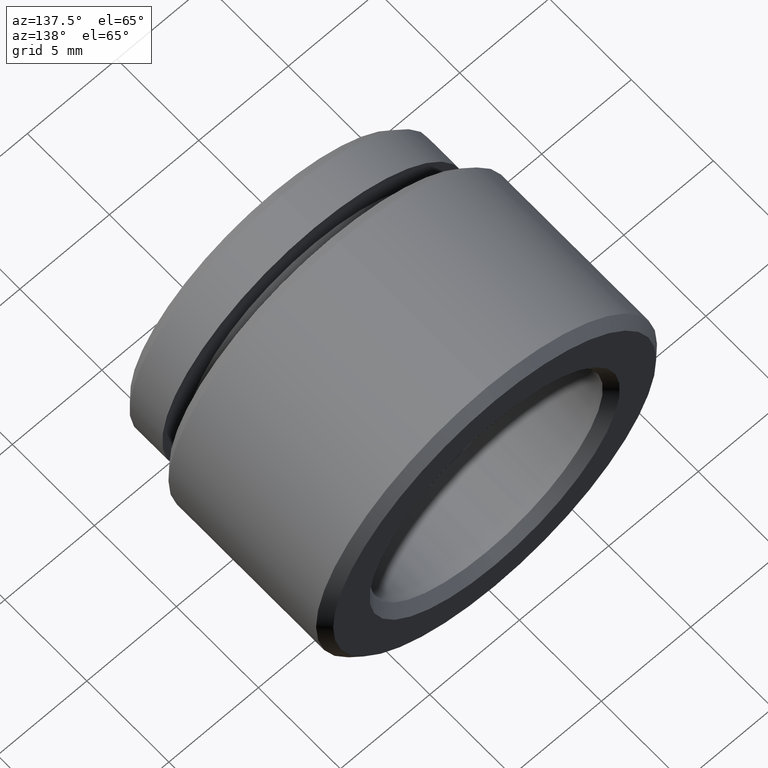
[diagram: clean part render]
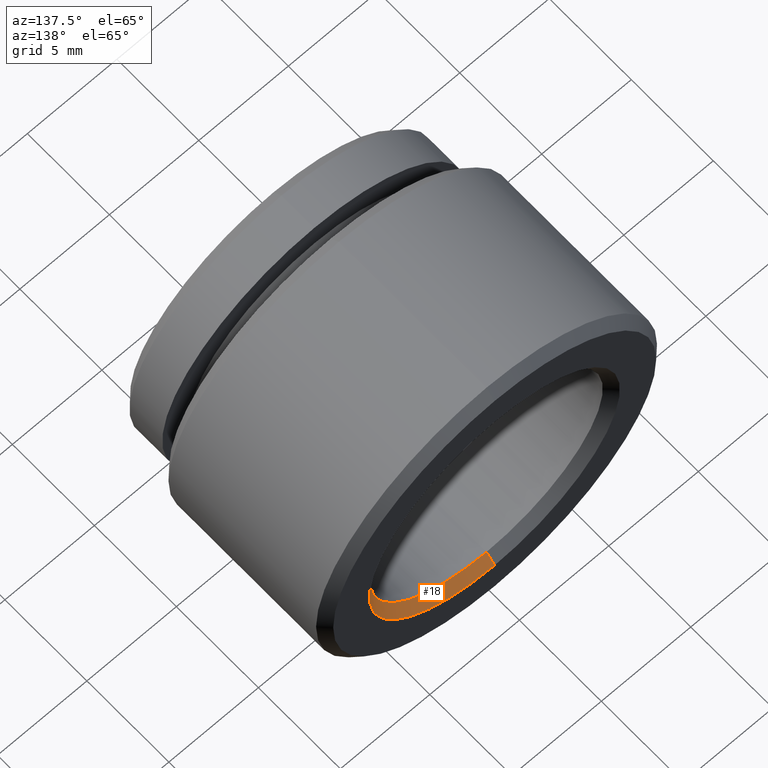
[diagram: same view with one face highlighted and labeled with its STEP entity id]
A machine part, auxiliary view. The second image highlights one B-rep face of the part: STEP entity #18.
In plain terms, the highlighted conical surface has half-angle 45 deg.
Its self-contained STEP definition (entity closure, byte-faithful):
#9 = CARTESIAN_POINT ( 'NONE',  ( 0.0000000000000000000, 13.49999999999999800, 6.999999999999999100 ) ) ;
#18 = ADVANCED_FACE ( 'NONE', ( #744 ), #558, .F. ) ;
#40 = CARTESIAN_POINT ( 'NONE',  ( 0.0000000000000000000, 13.49999999999999800, 6.999999999999999100 ) ) ;
#45 = CIRCLE ( 'NONE', #88, 6.500000000000000900 ) ;
#59 = VECTOR ( 'NONE', #112, 1000.000000000000000 ) ;
#88 = AXIS2_PLACEMENT_3D ( 'NONE', #642, #371, #702 ) ;
#94 = EDGE_LOOP ( 'NONE', ( #279, #660, #168, #674 ) ) ;
#103 = DIRECTION ( 'NONE',  ( 0.0000000000000000000, 0.0000000000000000000, 1.000000000000000000 ) ) ;
#112 = DIRECTION ( 'NONE',  ( 0.0000000000000000000, 0.7071067811865500200, 0.7071067811865450200 ) ) ;
#119 = CARTESIAN_POINT ( 'NONE',  ( 0.0000000000000000000, 12.99999999999999600, -6.500000000000000900 ) ) ;
#162 = LINE ( 'NONE', #40, #59 ) ;
#168 = ORIENTED_EDGE ( 'NONE', *, *, #733, .T. ) ;
#205 = LINE ( 'NONE', #476, #336 ) ;
#235 = AXIS2_PLACEMENT_3D ( 'NONE', #441, #701, #103 ) ;
#279 = ORIENTED_EDGE ( 'NONE', *, *, #697, .F. ) ;
#297 = VERTEX_POINT ( 'NONE', #9 ) ;
#326 = DIRECTION ( 'NONE',  ( 0.0000000000000000000, 0.0000000000000000000, 1.000000000000000000 ) ) ;
#336 = VECTOR ( 'NONE', #353, 1000.000000000000000 ) ;
#347 = CARTESIAN_POINT ( 'NONE',  ( 7.960204194457796500E-016, 12.99999999999999600, 6.500000000000000900 ) ) ;
#353 = DIRECTION ( 'NONE',  ( 8.659560562354902000E-017, 0.7071067811865500200, -0.7071067811865450200 ) ) ;
#356 = EDGE_CURVE ( 'NONE', #825, #297, #404, .T. ) ;
#360 = CARTESIAN_POINT ( 'NONE',  ( 8.572527594031472200E-016, 13.49999999999999800, -6.999999999999999100 ) ) ;
#371 = DIRECTION ( 'NONE',  ( -0.0000000000000000000, 1.000000000000000000, -0.0000000000000000000 ) ) ;
#404 = CIRCLE ( 'NONE', #235, 6.999999999999999100 ) ;
#441 = CARTESIAN_POINT ( 'NONE',  ( 0.0000000000000000000, 13.49999999999999800, 0.0000000000000000000 ) ) ;
#461 = CARTESIAN_POINT ( 'NONE',  ( 0.0000000000000000000, 13.49999999999999800, 0.0000000000000000000 ) ) ;
#476 = CARTESIAN_POINT ( 'NONE',  ( 8.572527594031472200E-016, 13.49999999999999800, -6.999999999999999100 ) ) ;
#558 = CONICAL_SURFACE ( 'NONE', #866, 6.999999999999999100, 0.7853981633974447300 ) ;
#616 = EDGE_CURVE ( 'NONE', #715, #688, #45, .T. ) ;
#642 = CARTESIAN_POINT ( 'NONE',  ( 0.0000000000000000000, 12.99999999999999600, 0.0000000000000000000 ) ) ;
#660 = ORIENTED_EDGE ( 'NONE', *, *, #616, .F. ) ;
#674 = ORIENTED_EDGE ( 'NONE', *, *, #356, .F. ) ;
#688 = VERTEX_POINT ( 'NONE', #119 ) ;
#697 = EDGE_CURVE ( 'NONE', #688, #825, #205, .T. ) ;
#701 = DIRECTION ( 'NONE',  ( -0.0000000000000000000, -1.000000000000000000, -0.0000000000000000000 ) ) ;
#702 = DIRECTION ( 'NONE',  ( 0.0000000000000000000, 0.0000000000000000000, 1.000000000000000000 ) ) ;
#715 = VERTEX_POINT ( 'NONE', #347 ) ;
#733 = EDGE_CURVE ( 'NONE', #715, #297, #162, .T. ) ;
#744 = FACE_OUTER_BOUND ( 'NONE', #94, .T. ) ;
#813 = DIRECTION ( 'NONE',  ( -0.0000000000000000000, 1.000000000000000000, -0.0000000000000000000 ) ) ;
#825 = VERTEX_POINT ( 'NONE', #360 ) ;
#866 = AXIS2_PLACEMENT_3D ( 'NONE', #461, #813, #326 ) ;